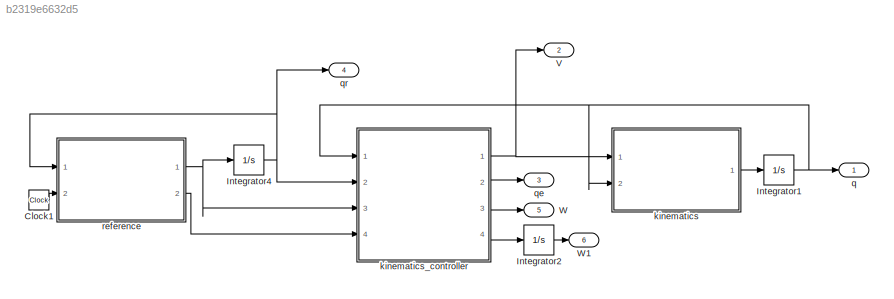
MODEL slx_b2319e6632d5
KIND model
CONFIG AbsTol = 1e-14
CONFIG EnableMultiTasking = off
CONFIG FixedStep = auto
CONFIG MaxStep = auto
CONFIG MinStep = auto
CONFIG RelTol = 1e-10
CONFIG SampleTimeConstraint = Unconstrained
CONFIG SolverName = VariableStepAuto
CONFIG StartTime = 0.0
CONFIG StopTime = 60
BLOCK [Clock] Clock1
BLOCK [Integrator] Integrator1
  InitialCondition = q0
  Ports = [1, 1]
BLOCK [Integrator] Integrator2
  Ports = [1, 1]
BLOCK [Integrator] Integrator4
  InitialCondition = qr0
  Ports = [1, 1]
BLOCK [Outport] V
  Port = 2
BLOCK [Outport] W
  Port = 5
BLOCK [Outport] W1
  Port = 6
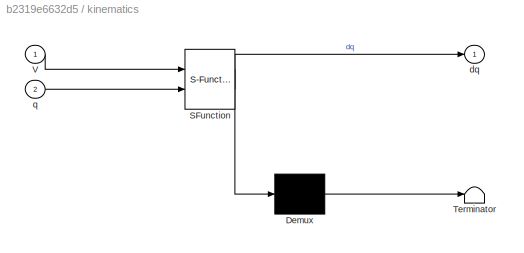
BLOCK [SubSystem] kinematics
  ErrorFcn = Stateflow.Translate.translate
  PermitHierarchicalResolution = ExplicitOnly
  Ports = [2, 1]
  RequestExecContextInheritance = off
  SFBlockType = MATLAB Function
  TreatAsAtomicUnit = on
BLOCK [Demux] kinematics/ Demux 
  Outputs = 1
  Ports = [1, 1]
BLOCK [S-Function] kinematics/ SFunction 
  EnableBusSupport = on
  FunctionName = sf_sfun
  PortCounts = [2 2]
  Ports = [2, 2]
  SFcnIsStateOwnerBlock = off
  SFunctionDeploymentMode = off
  Tag = Stateflow S-Function 4
BLOCK [Terminator] kinematics/ Terminator 
BLOCK [Inport] kinematics/V
BLOCK [Outport] kinematics/dq
BLOCK [Inport] kinematics/q
  Port = 2
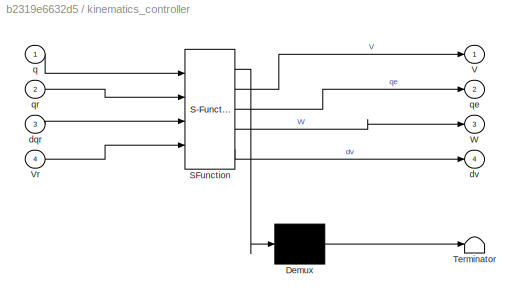
BLOCK [SubSystem] kinematics_controller
  ErrorFcn = Stateflow.Translate.translate
  PermitHierarchicalResolution = ExplicitOnly
  Ports = [4, 4]
  RequestExecContextInheritance = off
  SFBlockType = MATLAB Function
  TreatAsAtomicUnit = on
BLOCK [Demux] kinematics_controller/ Demux 
  Outputs = 1
  Ports = [1, 1]
BLOCK [S-Function] kinematics_controller/ SFunction 
  EnableBusSupport = on
  FunctionName = sf_sfun
  PortCounts = [4 5]
  Ports = [4, 5]
  SFcnIsStateOwnerBlock = off
  SFunctionDeploymentMode = off
  Tag = Stateflow S-Function 3
BLOCK [Terminator] kinematics_controller/ Terminator 
BLOCK [Outport] kinematics_controller/V
BLOCK [Inport] kinematics_controller/Vr
  Port = 4
BLOCK [Outport] kinematics_controller/W
  Port = 3
BLOCK [Inport] kinematics_controller/dqr
  Port = 3
BLOCK [Outport] kinematics_controller/dv
  Port = 4
BLOCK [Inport] kinematics_controller/q
BLOCK [Outport] kinematics_controller/qe
  Port = 2
BLOCK [Inport] kinematics_controller/qr
  Port = 2
BLOCK [Outport] q
BLOCK [Outport] qe
  Port = 3
BLOCK [Outport] qr
  Port = 4
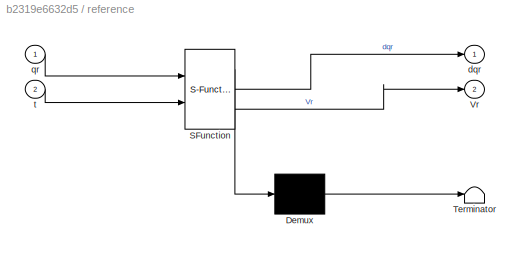
BLOCK [SubSystem] reference
  ErrorFcn = Stateflow.Translate.translate
  PermitHierarchicalResolution = ExplicitOnly
  Ports = [2, 2]
  RequestExecContextInheritance = off
  SFBlockType = MATLAB Function
  TreatAsAtomicUnit = on
BLOCK [Demux] reference/ Demux 
  Outputs = 1
  Ports = [1, 1]
BLOCK [S-Function] reference/ SFunction 
  EnableBusSupport = on
  FunctionName = sf_sfun
  PortCounts = [2 3]
  Ports = [2, 3]
  SFcnIsStateOwnerBlock = off
  SFunctionDeploymentMode = off
  Tag = Stateflow S-Function 1
BLOCK [Terminator] reference/ Terminator 
BLOCK [Outport] reference/Vr
  Port = 2
BLOCK [Outport] reference/dqr
BLOCK [Inport] reference/qr
BLOCK [Inport] reference/t
  Port = 2
LINE Clock1:1 -> reference:2
NET Integrator1:1 -> kinematics:2, kinematics_controller:1, q:1
LINE Integrator2:1 -> W1:1
NET Integrator4:1 -> kinematics_controller:2, qr:1, reference:1
LINE kinematics:1 -> Integrator1:1
NET kinematics_controller:1 -> V:1, kinematics:1
LINE kinematics_controller:2 -> qe:1
LINE kinematics_controller:3 -> W:1
LINE kinematics_controller:4 -> Integrator2:1
NET reference:1 -> Integrator4:1, kinematics_controller:3
LINE reference:2 -> kinematics_controller:4
note: NET lines group one-source signal fan-out (src -> all destinations, sorted); 1:1 wires keep LINE
CHART reference states=1 transitions=1
  STATE_LABEL 'eML_blk_kernel()'
  STATE_LABEL 'SCRIPT:\nfunction [dqr,Vr]= fcn(qr,t)\nvr=0.2;\nwr=-atan(0.2*sin(0.2*t));\nVr=[vr;wr];\ndqr=[cos(qr(3)) 0\n     sin(qr(3)) 0\n      0         1]*Vr;\n\n\n\n'
CHART kinematics_controller states=1 transitions=1
  STATE_LABEL 'eML_blk_kernel()'
  STATE_LABEL 'SCRIPT:\nfunction [V,qe,W,dv]= fcn(q,qr,dqr,Vr)\nthe=atan2(sin(q(3)),cos(q(3)));\n\n\nk1=1;k2=3;\n\nr=0.05;\nL=0.14;\nOm=10;\nvm=0.5*Om*r;wm=0.5*Om*r/L;\nal=atan2(dqr(2)+k1*(qr(2)-q(2)),dqr(1)+k1*(qr(1)-q(1)));\nvr=Vr(1);\nwr=Vr(2);\nthee=atan2(sin(al-the),cos(al-the));\nvp=sqrt((dqr(2)+k1*(qr(2)-q(2)))^2+(dqr(1)+k1*(qr(1)-q(1)))^2);\nvd=vp*cos(thee*0.5)^2;\nv=min(vd,vm);\ndal=wr*vp/vr+((k1*dqr(2)-k1*v*sin(the))*co...<+343ch>'
CHART kinematics states=1 transitions=1
  STATE_LABEL 'eML_blk_kernel()'
  STATE_LABEL 'SCRIPT:\nfunction dq = fcn(V,q)\ndq=[ cos(q(3))  0\n     sin(q(3))  0\n      0         1]*V;\n\n\n\n'
CHART  states=0 transitions=0
CHART  states=0 transitions=0
CHART  states=0 transitions=0
